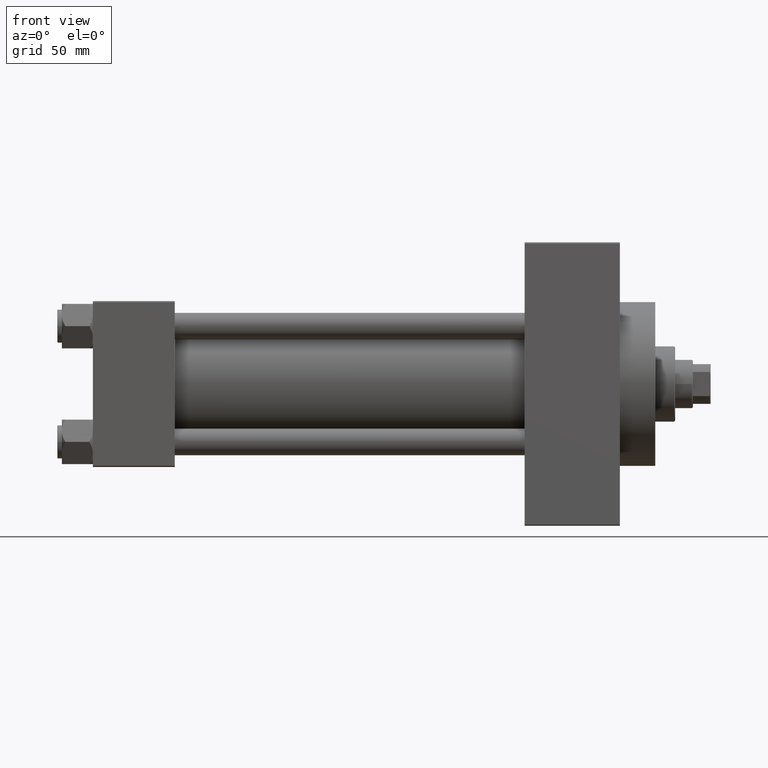
[diagram: clean part render]
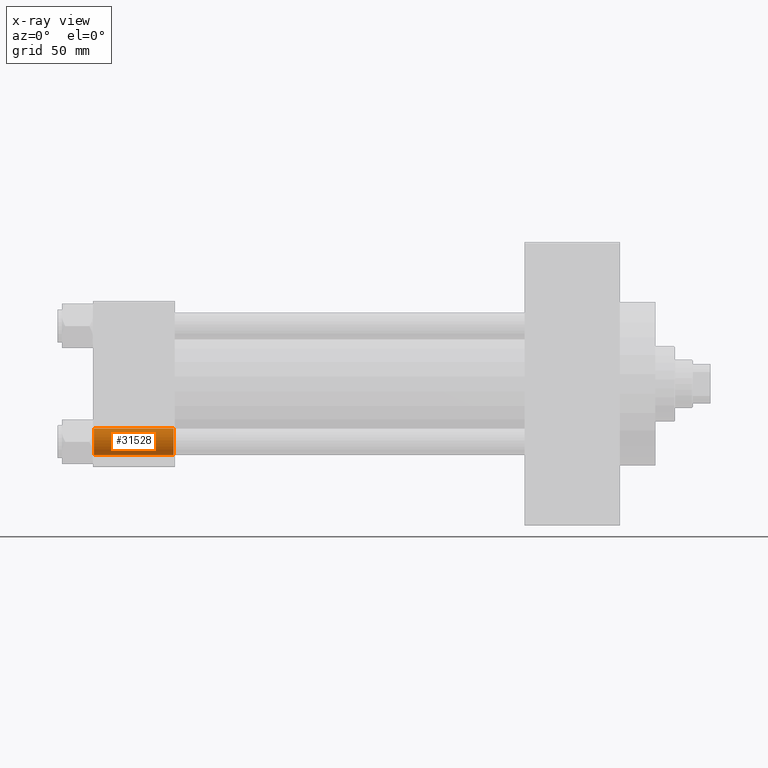
[diagram: x-ray — body ghosted, one internal face saturated and labeled with its STEP entity id]
A machine part, front view, then the same camera in x-ray: the body is ghosted and one INTERNAL B-rep face — a face not visible from any outside direction — is saturated and labeled: STEP entity #31528.
In plain terms, the highlighted cylindrical surface (edge-blend (fillet) strip) has radius 6 mm, axis along (-1, -0, -0).
Its self-contained STEP definition (entity closure, byte-faithful):
#70 = CARTESIAN_POINT ( 'NONE',  ( 37.00000000000000711, 26.14999999999999858, -20.15000000000000213 ) ) ;
#810 = CYLINDRICAL_SURFACE ( 'NONE', #47385, 6.000000000000001776 ) ;
#1652 = ORIENTED_EDGE ( 'NONE', *, *, #16145, .T. ) ;
#1988 = CARTESIAN_POINT ( 'NONE',  ( 36.50000000000005684, 26.14999999999999858, -32.15000000000000568 ) ) ;
#2873 = EDGE_CURVE ( 'NONE', #44847, #14725, #46587, .T. ) ;
#4425 = CARTESIAN_POINT ( 'NONE',  ( 37.00000000000000711, 26.14999999999999858, -26.15000000000000213 ) ) ;
#7282 = DIRECTION ( 'NONE',  ( -1.000000000000000000, 0.000000000000000000, 0.000000000000000000 ) ) ;
#7753 = EDGE_CURVE ( 'NONE', #44847, #38026, #11315, .T. ) ;
#8482 = CARTESIAN_POINT ( 'NONE',  ( 36.50000000000005684, 26.14999999999999858, -26.15000000000000213 ) ) ;
#10455 = EDGE_LOOP ( 'NONE', ( #23846, #1652, #29908, #18679 ) ) ;
#11310 = CIRCLE ( 'NONE', #18952, 6.000000000000001776 ) ;
#11315 = CIRCLE ( 'NONE', #35797, 6.000000000000001776 ) ;
#14713 = DIRECTION ( 'NONE',  ( -1.000000000000000000, -0.000000000000000000, -0.000000000000000000 ) ) ;
#14725 = VERTEX_POINT ( 'NONE', #42030 ) ;
#16145 = EDGE_CURVE ( 'NONE', #38026, #43263, #23808, .T. ) ;
#17930 = CARTESIAN_POINT ( 'NONE',  ( 0.5000000000000213163, 26.14999999999999858, -32.15000000000000568 ) ) ;
#18679 = ORIENTED_EDGE ( 'NONE', *, *, #2873, .F. ) ;
#18798 = DIRECTION ( 'NONE',  ( -1.000000000000000000, -0.000000000000000000, -0.000000000000000000 ) ) ;
#18952 = AXIS2_PLACEMENT_3D ( 'NONE', #40112, #7282, #43949 ) ;
#23808 = LINE ( 'NONE', #38448, #37941 ) ;
#23846 = ORIENTED_EDGE ( 'NONE', *, *, #7753, .T. ) ;
#24252 = DIRECTION ( 'NONE',  ( 0.000000000000000000, 0.000000000000000000, 1.000000000000000000 ) ) ;
#25508 = EDGE_CURVE ( 'NONE', #43263, #14725, #11310, .T. ) ;
#26939 = FACE_OUTER_BOUND ( 'NONE', #10455, .T. ) ;
#29908 = ORIENTED_EDGE ( 'NONE', *, *, #25508, .T. ) ;
#31528 = ADVANCED_FACE ( 'NONE', ( #26939 ), #810, .F. ) ;
#31698 = DIRECTION ( 'NONE',  ( 1.000000000000000000, -0.000000000000000000, -0.000000000000000000 ) ) ;
#33432 = DIRECTION ( 'NONE',  ( 0.000000000000000000, 0.000000000000000000, 1.000000000000000000 ) ) ;
#34849 = DIRECTION ( 'NONE',  ( -1.000000000000000000, -0.000000000000000000, -0.000000000000000000 ) ) ;
#35797 = AXIS2_PLACEMENT_3D ( 'NONE', #8482, #31698, #24252 ) ;
#37941 = VECTOR ( 'NONE', #34849, 1000.000000000000000 ) ;
#38026 = VERTEX_POINT ( 'NONE', #1988 ) ;
#38448 = CARTESIAN_POINT ( 'NONE',  ( 37.00000000000000711, 26.14999999999999858, -32.15000000000000568 ) ) ;
#40112 = CARTESIAN_POINT ( 'NONE',  ( 0.5000000000000213163, 26.14999999999999858, -26.15000000000000213 ) ) ;
#42030 = CARTESIAN_POINT ( 'NONE',  ( 0.5000000000000213163, 26.14999999999999858, -20.15000000000000213 ) ) ;
#42315 = CARTESIAN_POINT ( 'NONE',  ( 36.50000000000005684, 26.14999999999999858, -20.15000000000000213 ) ) ;
#43263 = VERTEX_POINT ( 'NONE', #17930 ) ;
#43949 = DIRECTION ( 'NONE',  ( 0.000000000000000000, 0.000000000000000000, 1.000000000000000000 ) ) ;
#44847 = VERTEX_POINT ( 'NONE', #42315 ) ;
#45717 = VECTOR ( 'NONE', #14713, 1000.000000000000000 ) ;
#46587 = LINE ( 'NONE', #70, #45717 ) ;
#47385 = AXIS2_PLACEMENT_3D ( 'NONE', #4425, #18798, #33432 ) ;